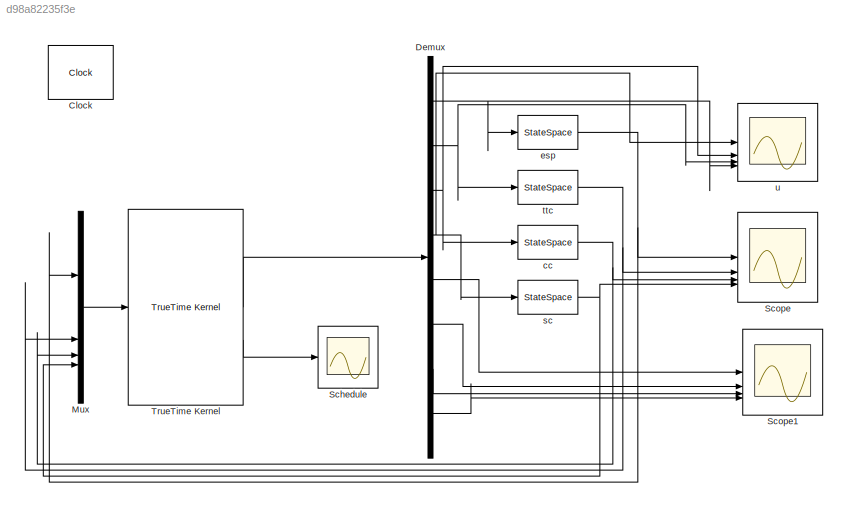
MODEL slx_d98a82235f3e
KIND model
CONFIG AbsTol = auto
CONFIG EnableMultiTasking = on
CONFIG FixedStep = auto
CONFIG InitFcn = clear functions\ninitialize
CONFIG MaxStep = auto
CONFIG MinStep = auto
CONFIG RelTol = 1e-3
CONFIG SampleTimeConstraint = Unconstrained
CONFIG SolverName = ode45
CONFIG StartTime = 0.0
CONFIG StopTime = 0.4
BLOCK [Clock] Clock
  DisplayTime = on
BLOCK [Demux] Demux
  DisplayOption = none
  Outputs = 8
BLOCK [Mux] Mux
  DisplayOption = bar
BLOCK [Scope] Schedule
  Floating = off
  NumInputPorts = 1
  ScopeSpecificationString = Simulink.scopes.TimeScopeBlockCfg('CurrentConfiguration', extmgr.ConfigurationSet(extmgr.Configuration('Core','General UI',true,'FigureColor',[0.156862745098039 0.156862745098039 0.156862745098039]),extmgr.Configuration('Core','Source UI',true),extmgr.Configuration('Sources','WiredSimulink',true,'DataLogging',true,'DataLoggingVariableName','ry','DataLoggingSaveFormat','StructureWithTime','DataLogg...<+3002ch>
BLOCK [Scope] Scope
  Floating = off
  NumInputPorts = 4
  ScopeSpecificationString = Simulink.scopes.TimeScopeBlockCfg('CurrentConfiguration', extmgr.ConfigurationSet(extmgr.Configuration('Core','General UI',true),extmgr.Configuration('Core','Source UI',true),extmgr.Configuration('Sources','WiredSimulink',true,'DataLoggingVariableName','ScopeData1'),extmgr.Configuration('Visuals','Time Domain',true,'SerializedDisplays',{struct('MinYLimReal','0.1','MaxYLimReal','0.3','YLabelReal','...<+3417ch>
BLOCK [Scope] Scope1
  Floating = off
  NumInputPorts = 4
  ScopeSpecificationString = Simulink.scopes.TimeScopeBlockCfg('CurrentConfiguration', extmgr.ConfigurationSet(extmgr.Configuration('Core','General UI',true),extmgr.Configuration('Core','Source UI',true),extmgr.Configuration('Sources','WiredSimulink',true,'DataLoggingVariableName','ScopeData1'),extmgr.Configuration('Visuals','Time Domain',true,'SerializedDisplays',{struct('MinYLimReal','-0.00000006','MaxYLimReal','0.0000005',...<+3474ch>
BLOCK [Reference] TrueTime Kernel  REF=truetime/TrueTime Kernel  (lib defined in slx_0362a698a4ec)
  SourceBlock = truetime/TrueTime Kernel
  UserDataPersistent = on
BLOCK [StateSpace] cc
  A = A_cc
  B = B_cc
  C = C_cc
  D = D_cc
  InitialCondition = sharedmem.x0{3}
  NameLocation = top
BLOCK [StateSpace] esp
  A = A_esp
  B = B_esp
  C = C_esp
  D = D_esp
  InitialCondition = sharedmem.x0{1}
  NameLocation = top
BLOCK [StateSpace] sc
  A = A_sc
  B = B_sc
  C = C_sc
  D = D_sc
  InitialCondition = sharedmem.x0{4}
  NameLocation = top
BLOCK [StateSpace] ttc
  A = A_ttc
  B = B_ttc
  C = C_ttc
  D = D_ttc
  InitialCondition = sharedmem.x0{2}
  NameLocation = top
BLOCK [Scope] u
  Floating = off
  NumInputPorts = 4
  ScopeSpecificationString = Simulink.scopes.TimeScopeBlockCfg('CurrentConfiguration', extmgr.ConfigurationSet(extmgr.Configuration('Core','General UI',true,'FigureColor',[0.156862745098039 0.156862745098039 0.156862745098039]),extmgr.Configuration('Core','Source UI',true),extmgr.Configuration('Sources','WiredSimulink',true,'DataLoggingSaveFormat','StructureWithTime','DataLoggingDecimation','1','DataLoggingDecimateData',true)...<+5848ch>
NET Demux:1 -> esp:1, u:4
NET Demux:2 -> ttc:1, u:3
NET Demux:3 -> cc:1, u:2
NET Demux:4 -> sc:1, u:1
LINE Demux:5 -> Scope1:1
LINE Demux:6 -> Scope1:2
LINE Demux:7 -> Scope1:3
LINE Demux:8 -> Scope1:4
LINE Mux:1 -> TrueTime Kernel:1
LINE TrueTime Kernel:1 -> Demux:1
LINE TrueTime Kernel:2 -> Schedule:1
NET cc:1 -> Mux:3, Scope:3
NET esp:1 -> Mux:1, Scope:1
NET sc:1 -> Mux:4, Scope:4
NET ttc:1 -> Mux:2, Scope:2
note: NET lines group one-source signal fan-out (src -> all destinations, sorted); 1:1 wires keep LINE
